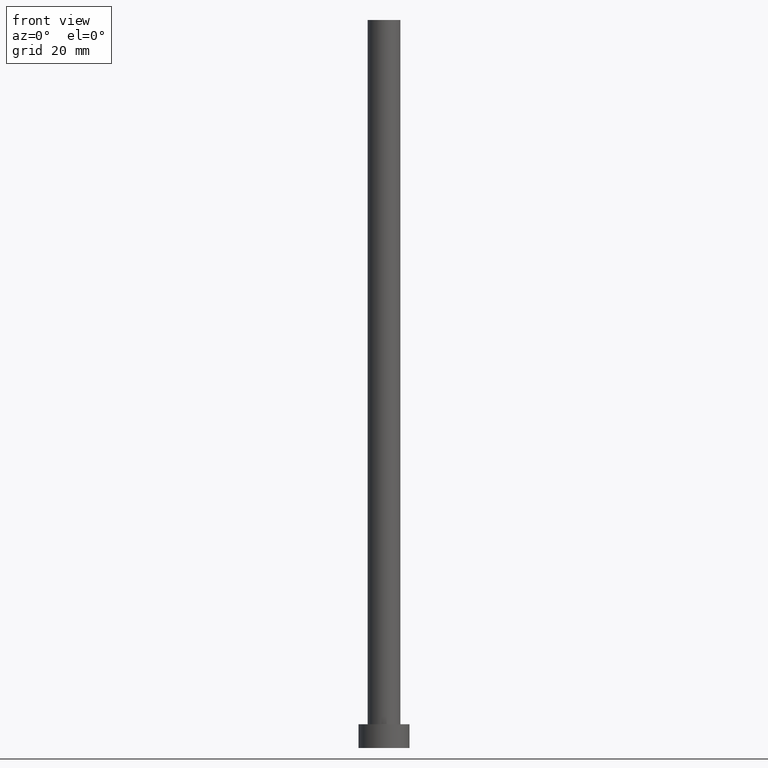
[diagram: clean part render]
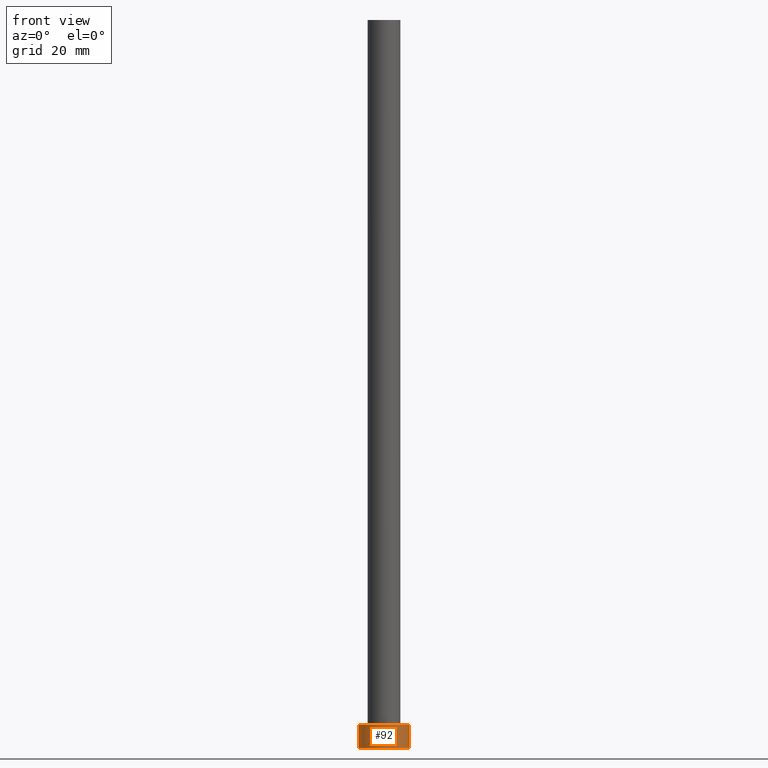
[diagram: same view with one face highlighted and labeled with its STEP entity id]
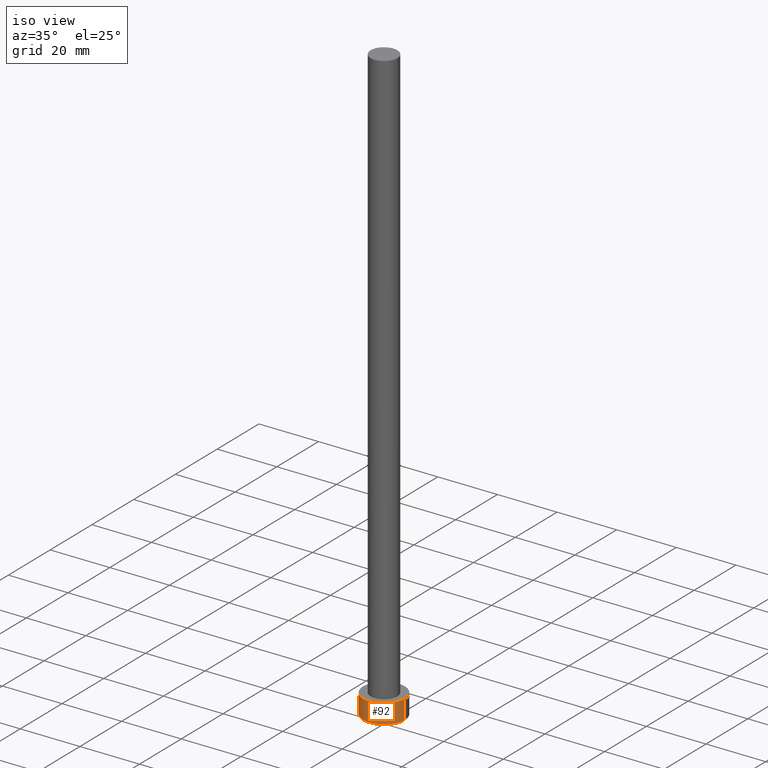
[diagram: same view with one face highlighted and labeled with its STEP entity id]
A machine part, front view. The second image highlights one B-rep face of the part: STEP entity #92.
A second angle (iso view) of the same face is appended — the face is thin or edge-on in the first view.
In plain terms, the highlighted cylindrical surface (edge-blend (fillet) strip) has radius 7 mm, axis along (-0, -0, -1).
Its self-contained STEP definition (entity closure, byte-faithful):
#8 = EDGE_CURVE ( 'NONE', #164, #71, #173, .T. ) ;
#9 = CARTESIAN_POINT ( 'NONE',  ( 0.000000000000000000, 0.000000000000000000, 0.000000000000000000 ) ) ;
#41 = ORIENTED_EDGE ( 'NONE', *, *, #230, .T. ) ;
#43 = ORIENTED_EDGE ( 'NONE', *, *, #220, .F. ) ;
#52 = CIRCLE ( 'NONE', #186, 7.000000000000000000 ) ;
#53 = CARTESIAN_POINT ( 'NONE',  ( -7.000000000000000000, 0.000000000000000000, 0.000000000000000000 ) ) ;
#71 = VERTEX_POINT ( 'NONE', #181 ) ;
#80 = AXIS2_PLACEMENT_3D ( 'NONE', #9, #128, #162 ) ;
#82 = CARTESIAN_POINT ( 'NONE',  ( -7.000000000000000000, 0.000000000000000000, 6.500000000000000000 ) ) ;
#90 = DIRECTION ( 'NONE',  ( 0.000000000000000000, 0.000000000000000000, 1.000000000000000000 ) ) ;
#91 = ORIENTED_EDGE ( 'NONE', *, *, #149, .T. ) ;
#92 = ADVANCED_FACE ( 'NONE', ( #212 ), #156, .T. ) ;
#96 = VECTOR ( 'NONE', #141, 1000.000000000000000 ) ;
#101 = LINE ( 'NONE', #82, #96 ) ;
#102 = CIRCLE ( 'NONE', #80, 7.000000000000000000 ) ;
#113 = CARTESIAN_POINT ( 'NONE',  ( -7.000000000000000000, 0.000000000000000000, 6.500000000000000000 ) ) ;
#120 = DIRECTION ( 'NONE',  ( -0.000000000000000000, -0.000000000000000000, -1.000000000000000000 ) ) ;
#128 = DIRECTION ( 'NONE',  ( 0.000000000000000000, 0.000000000000000000, 1.000000000000000000 ) ) ;
#132 = VECTOR ( 'NONE', #176, 1000.000000000000000 ) ;
#141 = DIRECTION ( 'NONE',  ( -0.000000000000000000, -0.000000000000000000, -1.000000000000000000 ) ) ;
#149 = EDGE_CURVE ( 'NONE', #202, #210, #101, .T. ) ;
#150 = CARTESIAN_POINT ( 'NONE',  ( 0.000000000000000000, 0.000000000000000000, 6.500000000000000000 ) ) ;
#153 = DIRECTION ( 'NONE',  ( -1.000000000000000000, 0.000000000000000000, 0.000000000000000000 ) ) ;
#156 = CYLINDRICAL_SURFACE ( 'NONE', #201, 7.000000000000000000 ) ;
#157 = CARTESIAN_POINT ( 'NONE',  ( 7.000000000000000000, 8.572527594031471218E-16, 6.500000000000000000 ) ) ;
#162 = DIRECTION ( 'NONE',  ( 1.000000000000000000, 0.000000000000000000, 0.000000000000000000 ) ) ;
#164 = VERTEX_POINT ( 'NONE', #157 ) ;
#173 = LINE ( 'NONE', #215, #132 ) ;
#176 = DIRECTION ( 'NONE',  ( -0.000000000000000000, -0.000000000000000000, -1.000000000000000000 ) ) ;
#181 = CARTESIAN_POINT ( 'NONE',  ( 7.000000000000000000, 8.572527594031471218E-16, 0.000000000000000000 ) ) ;
#182 = DIRECTION ( 'NONE',  ( 1.000000000000000000, 0.000000000000000000, 0.000000000000000000 ) ) ;
#186 = AXIS2_PLACEMENT_3D ( 'NONE', #150, #90, #182 ) ;
#201 = AXIS2_PLACEMENT_3D ( 'NONE', #254, #120, #153 ) ;
#202 = VERTEX_POINT ( 'NONE', #113 ) ;
#203 = EDGE_LOOP ( 'NONE', ( #222, #43, #91, #41 ) ) ;
#210 = VERTEX_POINT ( 'NONE', #53 ) ;
#212 = FACE_OUTER_BOUND ( 'NONE', #203, .T. ) ;
#215 = CARTESIAN_POINT ( 'NONE',  ( 7.000000000000000000, 8.572527594031471218E-16, 6.500000000000000000 ) ) ;
#220 = EDGE_CURVE ( 'NONE', #202, #164, #52, .T. ) ;
#222 = ORIENTED_EDGE ( 'NONE', *, *, #8, .F. ) ;
#230 = EDGE_CURVE ( 'NONE', #210, #71, #102, .T. ) ;
#254 = CARTESIAN_POINT ( 'NONE',  ( 0.000000000000000000, 0.000000000000000000, 6.500000000000000000 ) ) ;